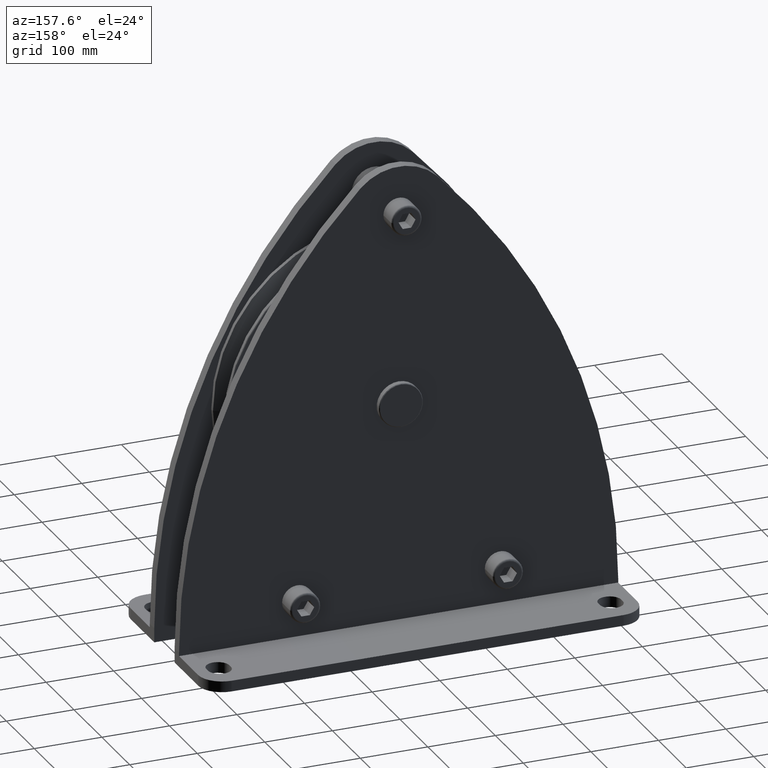
[diagram: clean part render]
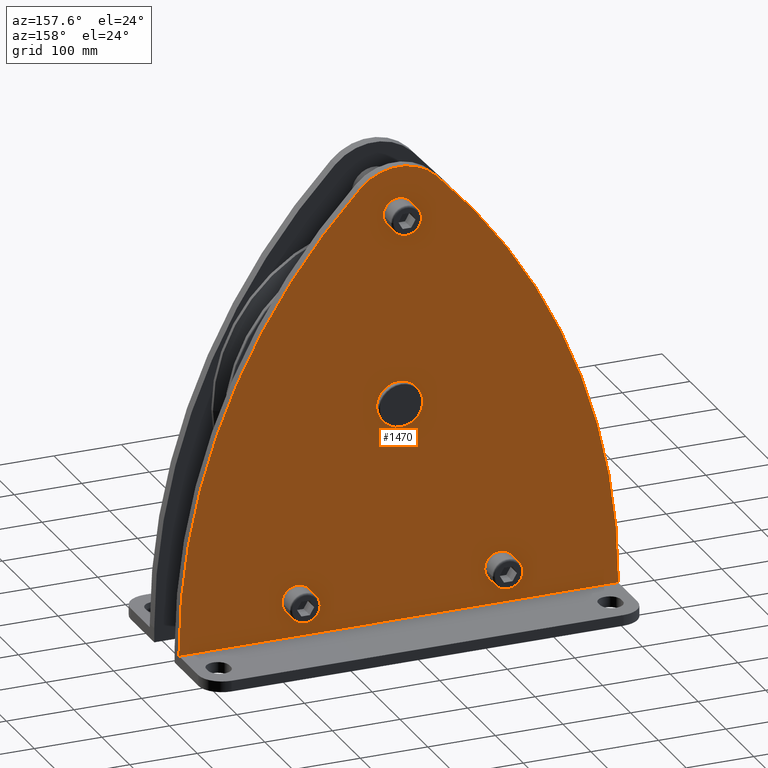
[diagram: same view with one face highlighted and labeled with its STEP entity id]
A machine part, auxiliary view. The second image highlights one B-rep face of the part: STEP entity #1470.
In plain terms, the highlighted planar face has unit normal (0, 1, 0).
Its self-contained STEP definition (entity closure, byte-faithful):
#1470=ADVANCED_FACE('',(#3210,#3211,#3212,#3213,#3214),#3215,.T.);
#3210=FACE_BOUND('',#5242,.T.);
#3211=FACE_BOUND('',#5243,.T.);
#3212=FACE_BOUND('',#5244,.T.);
#3213=FACE_BOUND('',#5245,.T.);
#3214=FACE_OUTER_BOUND('',#5246,.T.);
#3215=PLANE('',#5247);
#5242=EDGE_LOOP('',(#9872,#9873));
#5243=EDGE_LOOP('',(#9874,#9875));
#5244=EDGE_LOOP('',(#9876,#9877));
#5245=EDGE_LOOP('',(#9878,#9879,#9880));
#5246=EDGE_LOOP('',(#9881,#9882,#9883,#9884,#9885,#9886));
#5247=AXIS2_PLACEMENT_3D('',#9887,#9888,#9889);
#9872=ORIENTED_EDGE('',*,*,#12177,.T.);
#9873=ORIENTED_EDGE('',*,*,#13773,.T.);
#9874=ORIENTED_EDGE('',*,*,#12556,.T.);
#9875=ORIENTED_EDGE('',*,*,#13771,.T.);
#9876=ORIENTED_EDGE('',*,*,#12186,.T.);
#9877=ORIENTED_EDGE('',*,*,#13774,.T.);
#9878=ORIENTED_EDGE('',*,*,#12226,.T.);
#9879=ORIENTED_EDGE('',*,*,#13775,.T.);
#9880=ORIENTED_EDGE('',*,*,#12227,.T.);
#9881=ORIENTED_EDGE('',*,*,#13776,.T.);
#9882=ORIENTED_EDGE('',*,*,#13777,.F.);
#9883=ORIENTED_EDGE('',*,*,#13778,.F.);
#9884=ORIENTED_EDGE('',*,*,#13779,.F.);
#9885=ORIENTED_EDGE('',*,*,#13780,.F.);
#9886=ORIENTED_EDGE('',*,*,#13781,.F.);
#9887=CARTESIAN_POINT('',(-3.50119933045789E-012,52.5,-70.7966964212054));
#9888=DIRECTION('',(0.0,1.0,0.0));
#9889=DIRECTION('',(-1.0,0.0,0.0));
#12177=EDGE_CURVE('',#14637,#14639,#14641,.T.);
#12186=EDGE_CURVE('',#14652,#14654,#14656,.T.);
#12226=EDGE_CURVE('',#14724,#14721,#14725,.T.);
#12227=EDGE_CURVE('',#14726,#14724,#14727,.T.);
#12556=EDGE_CURVE('',#15268,#15272,#15274,.T.);
#13771=EDGE_CURVE('',#15272,#15268,#17082,.T.);
#13773=EDGE_CURVE('',#14639,#14637,#17084,.T.);
#13774=EDGE_CURVE('',#14654,#14652,#17085,.T.);
#13775=EDGE_CURVE('',#14721,#14726,#17086,.T.);
#13776=EDGE_CURVE('',#17087,#17088,#17089,.T.);
#13777=EDGE_CURVE('',#17090,#17088,#17091,.T.);
#13778=EDGE_CURVE('',#17092,#17090,#17093,.T.);
#13779=EDGE_CURVE('',#17094,#17092,#17095,.T.);
#13780=EDGE_CURVE('',#17096,#17094,#17097,.T.);
#13781=EDGE_CURVE('',#17087,#17096,#17098,.T.);
#14637=VERTEX_POINT('',#19396);
#14639=VERTEX_POINT('',#19399);
#14641=CIRCLE('',#19402,22.5);
#14652=VERTEX_POINT('',#19413);
#14654=VERTEX_POINT('',#19416);
#14656=CIRCLE('',#19419,22.5);
#14721=VERTEX_POINT('',#19494);
#14724=VERTEX_POINT('',#19498);
#14725=CIRCLE('',#19499,32.5);
#14726=VERTEX_POINT('',#19500);
#14727=CIRCLE('',#19501,32.5);
#15268=VERTEX_POINT('',#22132);
#15272=VERTEX_POINT('',#22137);
#15274=CIRCLE('',#22140,22.5);
#17082=CIRCLE('',#24603,22.5);
#17084=CIRCLE('',#24605,22.5);
#17085=CIRCLE('',#24606,22.5);
#17086=CIRCLE('',#24607,32.5);
#17087=VERTEX_POINT('',#24608);
#17088=VERTEX_POINT('',#24609);
#17089=LINE('',#24610,#24611);
#17090=VERTEX_POINT('',#24612);
#17091=LINE('',#24613,#24614);
#17092=VERTEX_POINT('',#24615);
#17093=CIRCLE('',#24616,920.0000000136);
#17094=VERTEX_POINT('',#24617);
#17095=CIRCLE('',#24618,80.0000000072001);
#17096=VERTEX_POINT('',#24619);
#17097=CIRCLE('',#24620,920.000000013603);
#17098=LINE('',#24621,#24622);
#19396=CARTESIAN_POINT('',(-127.5,52.5,-270.0));
#19399=CARTESIAN_POINT('',(-172.5,52.5,-270.0));
#19402=AXIS2_PLACEMENT_3D('',#26964,#26965,#26966);
#19413=CARTESIAN_POINT('',(22.5,52.5,285.0));
#19416=CARTESIAN_POINT('',(-22.5,52.5,285.0));
#19419=AXIS2_PLACEMENT_3D('',#26981,#26982,#26983);
#19494=CARTESIAN_POINT('',(3.9801020972289E-015,52.5,-32.5));
#19498=CARTESIAN_POINT('',(-32.5,52.5,0.0));
#19499=AXIS2_PLACEMENT_3D('',#27052,#27053,#27054);
#19500=CARTESIAN_POINT('',(-3.9801020972289E-015,52.5,32.5));
#19501=AXIS2_PLACEMENT_3D('',#27055,#27056,#27057);
#22132=CARTESIAN_POINT('',(172.5,52.5,-270.0));
#22137=CARTESIAN_POINT('',(127.5,52.5,-270.0));
#22140=AXIS2_PLACEMENT_3D('',#27496,#27497,#27498);
#24603=AXIS2_PLACEMENT_3D('',#28862,#28863,#28864);
#24605=AXIS2_PLACEMENT_3D('',#28865,#28866,#28867);
#24606=AXIS2_PLACEMENT_3D('',#28868,#28869,#28870);
#24607=AXIS2_PLACEMENT_3D('',#28871,#28872,#28873);
#24608=CARTESIAN_POINT('',(325.0,52.5,-324.0));
#24609=CARTESIAN_POINT('',(-325.0,52.5,-324.0));
#24610=CARTESIAN_POINT('',(-1.76214598468505E-012,52.5,-324.0));
#24611=VECTOR('',#28874,1.0);
#24612=CARTESIAN_POINT('',(-325.0,52.5,-318.747549009577));
#24613=CARTESIAN_POINT('',(-325.0,52.5,-340.0));
#24614=VECTOR('',#28875,1.0);
#24615=CARTESIAN_POINT('',(-56.666666670509,52.5,330.660300919498));
#24616=AXIS2_PLACEMENT_3D('',#28876,#28877,#28878);
#24617=CARTESIAN_POINT('',(56.6666666699818,52.5,330.660300919998));
#24618=AXIS2_PLACEMENT_3D('',#28879,#28880,#28881);
#24619=CARTESIAN_POINT('',(325.0,52.5,-318.747549009577));
#24620=AXIS2_PLACEMENT_3D('',#28882,#28883,#28884);
#24621=CARTESIAN_POINT('',(325.0,52.5,-318.74754901));
#24622=VECTOR('',#28885,1.0);
#26964=CARTESIAN_POINT('',(-150.0,52.5,-270.0));
#26965=DIRECTION('',(0.0,-1.0,0.0));
#26966=DIRECTION('',(1.0,0.0,0.0));
#26981=CARTESIAN_POINT('',(0.0,52.5,285.0));
#26982=DIRECTION('',(0.0,-1.0,0.0));
#26983=DIRECTION('',(1.0,0.0,0.0));
#27052=CARTESIAN_POINT('',(0.0,52.5,0.0));
#27053=DIRECTION('',(-0.0,-1.0,-0.0));
#27054=DIRECTION('',(-1.0,0.0,0.0));
#27055=CARTESIAN_POINT('',(0.0,52.5,0.0));
#27056=DIRECTION('',(-0.0,-1.0,-0.0));
#27057=DIRECTION('',(-1.0,0.0,0.0));
#27496=CARTESIAN_POINT('',(150.0,52.5,-270.0));
#27497=DIRECTION('',(0.0,-1.0,0.0));
#27498=DIRECTION('',(1.0,0.0,0.0));
#28862=CARTESIAN_POINT('',(150.0,52.5,-270.0));
#28863=DIRECTION('',(0.0,-1.0,0.0));
#28864=DIRECTION('',(1.0,0.0,0.0));
#28865=CARTESIAN_POINT('',(-150.0,52.5,-270.0));
#28866=DIRECTION('',(0.0,-1.0,0.0));
#28867=DIRECTION('',(1.0,0.0,0.0));
#28868=CARTESIAN_POINT('',(0.0,52.5,285.0));
#28869=DIRECTION('',(0.0,-1.0,0.0));
#28870=DIRECTION('',(1.0,0.0,0.0));
#28871=CARTESIAN_POINT('',(0.0,52.5,0.0));
#28872=DIRECTION('',(-0.0,-1.0,-0.0));
#28873=DIRECTION('',(-1.0,0.0,0.0));
#28874=DIRECTION('',(-1.0,0.0,0.0));
#28875=DIRECTION('',(0.0,-0.0,-1.0));
#28876=CARTESIAN_POINT('',(595.0000000136,52.5,-318.747549016));
#28877=DIRECTION('',(0.0,-1.0,0.0));
#28878=DIRECTION('',(-1.0,0.0,6.98129863087675E-012));
#28879=CARTESIAN_POINT('',(7.105427357601E-015,52.5,274.1900530928));
#28880=DIRECTION('',(0.0,-1.0,0.0));
#28881=DIRECTION('',(-0.708333333311021,0.0,0.705878097776449));
#28882=CARTESIAN_POINT('',(-595.000000013603,52.5,-318.747549016001));
#28883=DIRECTION('',(0.0,-1.0,0.0));
#28884=DIRECTION('',(0.708333333341822,0.0,0.70587809774554));
#28885=DIRECTION('',(0.0,0.0,1.0));